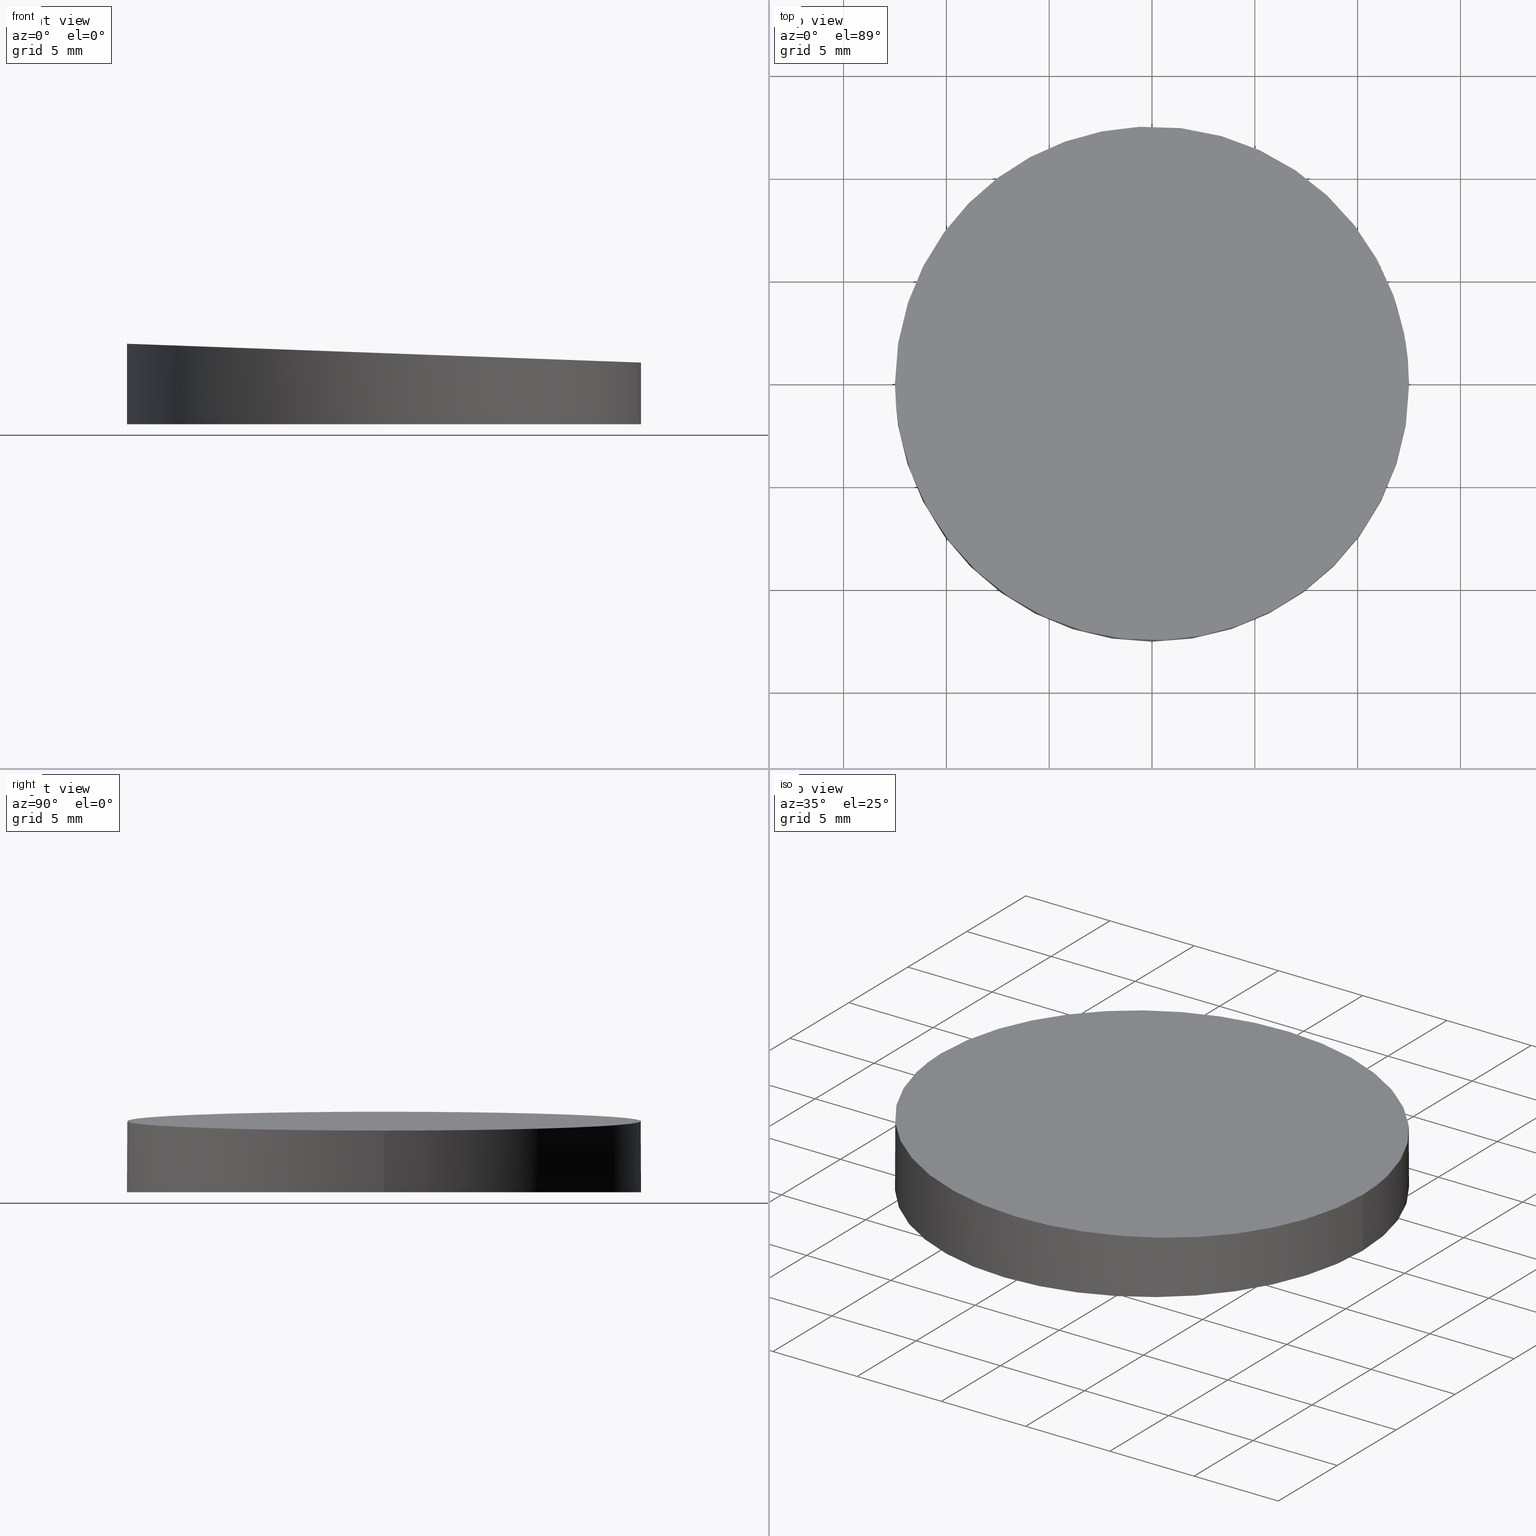
[diagram: canonical four-view strip — front | top / right | iso, engineering-drawing reading convention]
A machine part, canonical four-view strip (front | top / right | iso — engineering-drawing reading convention). The complete STEP part file that produces these views, byte-faithful:
ISO-10303-21;
HEADER;
FILE_DESCRIPTION (( 'STEP AP203' ),
    '1' );
FILE_NAME ('373530.STEP',
    '2019-07-24T09:39:42',
    ( '' ),
    ( '' ),
    'SwSTEP 2.0',
    'SolidWorks 2016',
    '' );
FILE_SCHEMA (( 'CONFIG_CONTROL_DESIGN' ));
ENDSEC;

DATA;
#1 = DIRECTION ( 'NONE',  ( -0.03660882554267880200, 0.0000000000000000000, -0.9993296722765644400 ) ) ;
#2 = CARTESIAN_POINT ( 'NONE',  ( 0.0000000000000000000, 0.0000000000000000000, 0.0000000000000000000 ) ) ;
#3 = PERSON_AND_ORGANIZATION ( #83, #242 ) ;
#4 = DIRECTION ( 'NONE',  ( 0.0000000000000000000, 0.0000000000000000000, 1.000000000000000000 ) ) ;
#5 = AXIS2_PLACEMENT_3D ( 'NONE', #193, #91, #129 ) ;
#6 = APPROVAL_DATE_TIME ( #253, #178 ) ;
#7 = CC_DESIGN_PERSON_AND_ORGANIZATION_ASSIGNMENT ( #214, #119, ( #241 ) ) ;
#8 = DATE_AND_TIME ( #105, #15 ) ;
#9 = ORIENTED_EDGE ( 'NONE', *, *, #163, .F. ) ;
#10 = CARTESIAN_POINT ( 'NONE',  ( -12.49999999999999600, 0.0000000000000000000, 3.915834547854477200 ) ) ;
#11 = CC_DESIGN_PERSON_AND_ORGANIZATION_ASSIGNMENT ( #168, #100, ( #80 ) ) ;
#12 = PRODUCT ( '373530', '373530', '', ( #39 ) ) ;
#13 = APPROVAL_ROLE ( '' ) ;
#14 = APPROVAL_DATE_TIME ( #106, #49 ) ;
#15 = LOCAL_TIME ( 17, 39, 42.00000000000000000, #157 ) ;
#16 = CC_DESIGN_DATE_AND_TIME_ASSIGNMENT ( #165, #120, ( #241 ) ) ;
#17 = DIRECTION ( 'NONE',  ( -0.9993296722765644400, 0.0000000000000000000, 0.03660882554267880200 ) ) ;
#18 = APPROVAL_PERSON_ORGANIZATION ( #169, #148, #81 ) ;
#19 = LOCAL_TIME ( 17, 39, 42.00000000000000000, #151 ) ;
#20 = EDGE_CURVE ( 'NONE', #116, #243, #138, .T. ) ;
#21 = ADVANCED_BREP_SHAPE_REPRESENTATION ( '373530', ( #195, #118 ), #114 ) ;
#22 = COORDINATED_UNIVERSAL_TIME_OFFSET ( 8, 0, .AHEAD. ) ;
#23 = EDGE_CURVE ( 'NONE', #25, #243, #37, .T. ) ;
#24 = DATE_AND_TIME ( #248, #213 ) ;
#25 = VERTEX_POINT ( 'NONE', #109 ) ;
#26 = APPROVAL_STATUS ( 'not_yet_approved' ) ;
#27 = APPROVAL_STATUS ( 'not_yet_approved' ) ;
#28 = PRODUCT_DEFINITION_FORMATION_WITH_SPECIFIED_SOURCE ( '�κ�', '', #12, .NOT_KNOWN. ) ;
#29 = COORDINATED_UNIVERSAL_TIME_OFFSET ( 8, 0, .AHEAD. ) ;
#30 = DATE_TIME_ROLE ( 'creation_date' ) ;
#31 = CARTESIAN_POINT ( 'NONE',  ( -12.49999999999999600, 0.0000000000000000000, 3.915834547854477200 ) ) ;
#32 = AXIS2_PLACEMENT_3D ( 'NONE', #127, #1, #17 ) ;
#33 = COORDINATED_UNIVERSAL_TIME_OFFSET ( 8, 0, .AHEAD. ) ;
#34 = PLANE ( 'NONE',  #32 ) ;
#35 = ORIENTED_EDGE ( 'NONE', *, *, #217, .T. ) ;
#36 = DIRECTION ( 'NONE',  ( 1.000000000000000000, 0.0000000000000000000, 0.0000000000000000000 ) ) ;
#37 = CIRCLE ( 'NONE', #75, 12.49999999999999600 ) ;
#38 = APPROVAL_PERSON_ORGANIZATION ( #135, #178, #144 ) ;
#39 = MECHANICAL_CONTEXT ( 'NONE', #47, 'mechanical' ) ;
#40 = APPROVAL_DATE_TIME ( #221, #130 ) ;
#41 = APPLICATION_PROTOCOL_DEFINITION ( 'international standard', 'config_control_design', 1994, #160 ) ;
#42 = VERTEX_POINT ( 'NONE', #50 ) ;
#43 = ADVANCED_FACE ( 'NONE', ( #143 ), #34, .F. ) ;
#44 = CALENDAR_DATE ( 2019, 24, 7 ) ;
#45 = ORIENTED_EDGE ( 'NONE', *, *, #124, .F. ) ;
#46 = DATE_AND_TIME ( #229, #99 ) ;
#47 = APPLICATION_CONTEXT ( 'configuration controlled 3d designs of mechanical parts and assemblies' ) ;
#48 = CALENDAR_DATE ( 2019, 24, 7 ) ;
#49 = APPROVAL ( #226, 'δָ��' ) ;
#50 = CARTESIAN_POINT ( 'NONE',  ( 12.49999999999999600, 1.530808498934191100E-015, 3.000000000000000000 ) ) ;
#51 = CARTESIAN_POINT ( 'NONE',  ( -12.49999999999999600, 0.0000000000000000000, 10.00000000000000000 ) ) ;
#52 = ORIENTED_EDGE ( 'NONE', *, *, #20, .F. ) ;
#53 = PERSON_AND_ORGANIZATION_ROLE ( 'creator' ) ;
#54 = CC_DESIGN_PERSON_AND_ORGANIZATION_ASSIGNMENT ( #67, #244, ( #28 ) ) ;
#55 = ADVANCED_FACE ( 'NONE', ( #223 ), #150, .F. ) ;
#56 = COORDINATED_UNIVERSAL_TIME_OFFSET ( 8, 0, .AHEAD. ) ;
#57 = PERSON_AND_ORGANIZATION ( #83, #242 ) ;
#58 = PERSON_AND_ORGANIZATION_ROLE ( 'design_owner' ) ;
#59 = CC_DESIGN_PERSON_AND_ORGANIZATION_ASSIGNMENT ( #199, #58, ( #12 ) ) ;
#60 = PERSON_AND_ORGANIZATION_ROLE ( 'design_supplier' ) ;
#61 = APPROVAL_PERSON_ORGANIZATION ( #112, #222, #238 ) ;
#62 = ORIENTED_EDGE ( 'NONE', *, *, #23, .T. ) ;
#63 = ADVANCED_FACE ( 'NONE', ( #197 ), #69, .T. ) ;
#64 = APPROVAL_ROLE ( '' ) ;
#65 = AXIS2_PLACEMENT_3D ( 'NONE', #171, #71, #212 ) ;
#66 = DIRECTION ( 'NONE',  ( -1.000000000000000000, 0.0000000000000000000, 0.0000000000000000000 ) ) ;
#67 = PERSON_AND_ORGANIZATION ( #83, #242 ) ;
#68 = COORDINATED_UNIVERSAL_TIME_OFFSET ( 8, 0, .AHEAD. ) ;
#69 = CYLINDRICAL_SURFACE ( 'NONE', #5, 12.49999999999999600 ) ;
#70 = CARTESIAN_POINT ( 'NONE',  ( 0.0000000000000000000, 0.0000000000000000000, 0.0000000000000000000 ) ) ;
#71 = DIRECTION ( 'NONE',  ( 0.0000000000000000000, 0.0000000000000000000, 1.000000000000000000 ) ) ;
#72 =( LENGTH_UNIT ( ) NAMED_UNIT ( * ) SI_UNIT ( .MILLI., .METRE. ) );
#73 = CC_DESIGN_DATE_AND_TIME_ASSIGNMENT ( #233, #240, ( #96 ) ) ;
#74 = COORDINATED_UNIVERSAL_TIME_OFFSET ( 8, 0, .AHEAD. ) ;
#75 = AXIS2_PLACEMENT_3D ( 'NONE', #2, #4, #36 ) ;
#76 = CALENDAR_DATE ( 2019, 24, 7 ) ;
#77 = DATE_AND_TIME ( #180, #181 ) ;
#78 = EDGE_LOOP ( 'NONE', ( #35, #94, #62, #52 ) ) ;
#79 = CARTESIAN_POINT ( 'NONE',  ( 12.50000000000000000, 24.99999999999998900, 2.999999999999999600 ) ) ;
#80 = PRODUCT_DEFINITION ( 'δ֪', '', #201, #231 ) ;
#81 = APPROVAL_ROLE ( '' ) ;
#82 = DIRECTION ( 'NONE',  ( 1.000000000000000000, 0.0000000000000000000, 0.0000000000000000000 ) ) ;
#83 = PERSON ( 'δָ��', 'δָ��', 'δָ��', ('δָ��'), ('δָ��'), ('δָ��') ) ;
#84 = PERSON_AND_ORGANIZATION_ROLE ( 'design_supplier' ) ;
#85 = PERSON_AND_ORGANIZATION ( #83, #242 ) ;
#86 = CC_DESIGN_SECURITY_CLASSIFICATION ( #153, ( #28 ) ) ;
#87 = VECTOR ( 'NONE', #92, 1000.000000000000000 ) ;
#88 = LINE ( 'NONE', #191, #235 ) ;
#89 = UNCERTAINTY_MEASURE_WITH_UNIT (LENGTH_MEASURE( 1.000000000000000100E-005 ), #72, 'distance_accuracy_value', 'NONE');
#90 =( NAMED_UNIT ( * ) SI_UNIT ( $, .STERADIAN. ) SOLID_ANGLE_UNIT ( ) );
#91 = DIRECTION ( 'NONE',  ( -0.0000000000000000000, -0.0000000000000000000, -1.000000000000000000 ) ) ;
#92 = DIRECTION ( 'NONE',  ( -0.0000000000000000000, -0.0000000000000000000, -1.000000000000000000 ) ) ;
#93 = LOCAL_TIME ( 17, 39, 42.00000000000000000, #74 ) ;
#94 = ORIENTED_EDGE ( 'NONE', *, *, #145, .T. ) ;
#95 = CC_DESIGN_APPROVAL ( #49, ( #241 ) ) ;
#96 = PRODUCT_DEFINITION ( 'δ֪', '', #28, #172 ) ;
#97 = LOCAL_TIME ( 17, 39, 42.00000000000000000, #149 ) ;
#98 = ORIENTED_EDGE ( 'NONE', *, *, #20, .T. ) ;
#99 = LOCAL_TIME ( 17, 39, 42.00000000000000000, #68 ) ;
#100 = PERSON_AND_ORGANIZATION_ROLE ( 'creator' ) ;
#101 = APPLICATION_PROTOCOL_DEFINITION ( 'international standard', 'config_control_design', 1994, #47 ) ;
#102 = LOCAL_TIME ( 17, 39, 42.00000000000000000, #33 ) ;
#103 = CIRCLE ( 'NONE', #230, 12.49999999999999600 ) ;
#104 = APPLICATION_CONTEXT ( 'configuration controlled 3d designs of mechanical parts and assemblies' ) ;
#105 = CALENDAR_DATE ( 2019, 24, 7 ) ;
#106 = DATE_AND_TIME ( #137, #111 ) ;
#107 = CARTESIAN_POINT ( 'NONE',  ( -12.49999999999999500, -24.99999999999998900, 3.915834547854476700 ) ) ;
#108 = CC_DESIGN_APPROVAL ( #222, ( #201 ) ) ;
#109 = CARTESIAN_POINT ( 'NONE',  ( 12.49999999999999600, 1.530808498934191100E-015, 0.0000000000000000000 ) ) ;
#110 = APPROVAL_STATUS ( 'not_yet_approved' ) ;
#111 = LOCAL_TIME ( 17, 39, 42.00000000000000000, #29 ) ;
#112 = PERSON_AND_ORGANIZATION ( #83, #242 ) ;
#113 = EDGE_LOOP ( 'NONE', ( #45, #147 ) ) ;
#114 =( GEOMETRIC_REPRESENTATION_CONTEXT ( 3 ) GLOBAL_UNCERTAINTY_ASSIGNED_CONTEXT ( ( #89 ) ) GLOBAL_UNIT_ASSIGNED_CONTEXT ( ( #72, #232, #90 ) ) REPRESENTATION_CONTEXT ( 'NONE', 'WORKASPACE' ) );
#115 = CC_DESIGN_PERSON_AND_ORGANIZATION_ASSIGNMENT ( #3, #203, ( #225 ) ) ;
#116 = VERTEX_POINT ( 'NONE', #31 ) ;
#117 = SECURITY_CLASSIFICATION_LEVEL ( 'unclassified' ) ;
#118 = AXIS2_PLACEMENT_3D ( 'NONE', #185, #207, #227 ) ;
#119 = PERSON_AND_ORGANIZATION_ROLE ( 'classification_officer' ) ;
#120 = DATE_TIME_ROLE ( 'classification_date' ) ;
#121 = CC_DESIGN_SECURITY_CLASSIFICATION ( #241, ( #201 ) ) ;
#122 = DATE_AND_TIME ( #200, #19 ) ;
#123 = DIRECTION ( 'NONE',  ( 1.000000000000000000, 0.0000000000000000000, 0.0000000000000000000 ) ) ;
#124 = EDGE_CURVE ( 'NONE', #243, #25, #103, .T. ) ;
#125 = CARTESIAN_POINT ( 'NONE',  ( 12.50000000000000000, -24.99999999999998900, 2.999999999999999600 ) ) ;
#126 = CARTESIAN_POINT ( 'NONE',  ( 0.0000000000000000000, 0.0000000000000000000, 10.00000000000000000 ) ) ;
#127 = CARTESIAN_POINT ( 'NONE',  ( 12.49999999999999600, -25.00000000000000000, 3.000000000000000000 ) ) ;
#128 = AXIS2_PLACEMENT_3D ( 'NONE', #251, #184, #82 ) ;
#129 = DIRECTION ( 'NONE',  ( -1.000000000000000000, 0.0000000000000000000, 0.0000000000000000000 ) ) ;
#130 = APPROVAL ( #26, 'δָ��' ) ;
#131 = PERSON_AND_ORGANIZATION ( #83, #242 ) ;
#132 = PRODUCT_DEFINITION_SHAPE ( 'NONE', 'NONE',  #96 ) ;
#133 = ORIENTED_EDGE ( 'NONE', *, *, #217, .F. ) ;
#134 = CC_DESIGN_PERSON_AND_ORGANIZATION_ASSIGNMENT ( #57, #84, ( #201 ) ) ;
#135 = PERSON_AND_ORGANIZATION ( #83, #242 ) ;
#136 = CYLINDRICAL_SURFACE ( 'NONE', #182, 12.49999999999999600 ) ;
#137 = CALENDAR_DATE ( 2019, 24, 7 ) ;
#138 = LINE ( 'NONE', #51, #87 ) ;
#139 = CARTESIAN_POINT ( 'NONE',  ( -12.50000000000000500, 24.99999999999998900, 3.915834547854476700 ) ) ;
#140 = CC_DESIGN_APPROVAL ( #155, ( #28 ) ) ;
#141 = APPLICATION_PROTOCOL_DEFINITION ( 'international standard', 'config_control_design', 1994, #104 ) ;
#142 = PERSON_AND_ORGANIZATION_ROLE ( 'classification_officer' ) ;
#143 = FACE_OUTER_BOUND ( 'NONE', #158, .T. ) ;
#144 = APPROVAL_ROLE ( '' ) ;
#145 = EDGE_CURVE ( 'NONE', #42, #25, #88, .T. ) ;
#146 =( BOUNDED_CURVE ( )  B_SPLINE_CURVE ( 3, ( #188, #125, #107, #211 ),
 .UNSPECIFIED., .F., .F. ) 
 B_SPLINE_CURVE_WITH_KNOTS ( ( 4, 4 ),
 ( 0.0000000000000000000, 3.141592653589793100 ),
 .UNSPECIFIED. ) 
 CURVE ( )  GEOMETRIC_REPRESENTATION_ITEM ( )  RATIONAL_B_SPLINE_CURVE ( ( 1.000000000000000000, 0.3333333333333333700, 0.3333333333333333700, 1.000000000000000000 ) ) 
 REPRESENTATION_ITEM ( '' )  );
#147 = ORIENTED_EDGE ( 'NONE', *, *, #23, .F. ) ;
#148 = APPROVAL ( #27, 'δָ��' ) ;
#149 = COORDINATED_UNIVERSAL_TIME_OFFSET ( 8, 0, .AHEAD. ) ;
#150 = PLANE ( 'NONE',  #65 ) ;
#151 = COORDINATED_UNIVERSAL_TIME_OFFSET ( 8, 0, .AHEAD. ) ;
#152 = ORIENTED_EDGE ( 'NONE', *, *, #145, .F. ) ;
#153 = SECURITY_CLASSIFICATION ( '', '', #183 ) ;
#154 = CLOSED_SHELL ( 'NONE', ( #63, #179, #55, #43 ) ) ;
#155 = APPROVAL ( #204, 'δָ��' ) ;
#156 = CARTESIAN_POINT ( 'NONE',  ( 12.49999999999999600, 1.530808498934191100E-015, 3.000000000000000000 ) ) ;
#157 = COORDINATED_UNIVERSAL_TIME_OFFSET ( 8, 0, .AHEAD. ) ;
#158 = EDGE_LOOP ( 'NONE', ( #133, #9 ) ) ;
#159 = LOCAL_TIME ( 17, 39, 42.00000000000000000, #22 ) ;
#160 = APPLICATION_CONTEXT ( 'configuration controlled 3d designs of mechanical parts and assemblies' ) ;
#161 = APPROVAL_PERSON_ORGANIZATION ( #131, #130, #64 ) ;
#162 = MECHANICAL_CONTEXT ( 'NONE', #104, 'mechanical' ) ;
#163 = EDGE_CURVE ( 'NONE', #42, #116, #146, .T. ) ;
#164 = APPLICATION_PROTOCOL_DEFINITION ( 'international standard', 'config_control_design', 1994, #202 ) ;
#165 = DATE_AND_TIME ( #76, #159 ) ;
#166 = DIRECTION ( 'NONE',  ( -0.0000000000000000000, -0.0000000000000000000, -1.000000000000000000 ) ) ;
#167 = PRODUCT_RELATED_PRODUCT_CATEGORY ( 'detail', '', ( #12 ) ) ;
#168 = PERSON_AND_ORGANIZATION ( #83, #242 ) ;
#169 = PERSON_AND_ORGANIZATION ( #83, #242 ) ;
#170 = DIRECTION ( 'NONE',  ( -0.0000000000000000000, -0.0000000000000000000, -1.000000000000000000 ) ) ;
#171 = CARTESIAN_POINT ( 'NONE',  ( 0.0000000000000000000, 0.0000000000000000000, 0.0000000000000000000 ) ) ;
#172 = DESIGN_CONTEXT ( 'detailed design', #160, 'design' ) ;
#173 = SHAPE_DEFINITION_REPRESENTATION ( #189, #21 ) ;
#174 = CC_DESIGN_APPROVAL ( #148, ( #153 ) ) ;
#175 = PERSON_AND_ORGANIZATION ( #83, #242 ) ;
#176 = APPROVAL_PERSON_ORGANIZATION ( #85, #155, #208 ) ;
#177 = EDGE_LOOP ( 'NONE', ( #152, #192, #98, #250 ) ) ;
#178 = APPROVAL ( #110, 'δָ��' ) ;
#179 = ADVANCED_FACE ( 'NONE', ( #234 ), #136, .T. ) ;
#180 = CALENDAR_DATE ( 2019, 24, 7 ) ;
#181 = LOCAL_TIME ( 17, 39, 42.00000000000000000, #237 ) ;
#182 = AXIS2_PLACEMENT_3D ( 'NONE', #126, #170, #66 ) ;
#183 = SECURITY_CLASSIFICATION_LEVEL ( 'unclassified' ) ;
#184 = DIRECTION ( 'NONE',  ( 0.0000000000000000000, 0.0000000000000000000, 1.000000000000000000 ) ) ;
#185 = CARTESIAN_POINT ( 'NONE',  ( 0.0000000000000000000, 0.0000000000000000000, 0.0000000000000000000 ) ) ;
#186 = CC_DESIGN_DATE_AND_TIME_ASSIGNMENT ( #24, #30, ( #80 ) ) ;
#187 = PERSON_AND_ORGANIZATION ( #83, #242 ) ;
#188 = CARTESIAN_POINT ( 'NONE',  ( 12.49999999999999600, 1.530808498934191100E-015, 3.000000000000000000 ) ) ;
#189 = PRODUCT_DEFINITION_SHAPE ( 'NONE', 'NONE',  #80 ) ;
#190 = CC_DESIGN_DATE_AND_TIME_ASSIGNMENT ( #77, #239, ( #153 ) ) ;
#191 = CARTESIAN_POINT ( 'NONE',  ( 12.49999999999999600, 1.530808498934191100E-015, 10.00000000000000000 ) ) ;
#192 = ORIENTED_EDGE ( 'NONE', *, *, #163, .T. ) ;
#193 = CARTESIAN_POINT ( 'NONE',  ( 0.0000000000000000000, 0.0000000000000000000, 10.00000000000000000 ) ) ;
#194 = PERSON_AND_ORGANIZATION ( #83, #242 ) ;
#195 = MANIFOLD_SOLID_BREP ( '�г�-����1', #154 ) ;
#196 = CARTESIAN_POINT ( 'NONE',  ( -12.49999999999999600, 0.0000000000000000000, 0.0000000000000000000 ) ) ;
#197 = FACE_OUTER_BOUND ( 'NONE', #78, .T. ) ;
#198 = CC_DESIGN_APPROVAL ( #178, ( #96 ) ) ;
#199 = PERSON_AND_ORGANIZATION ( #83, #242 ) ;
#200 = CALENDAR_DATE ( 2019, 24, 7 ) ;
#201 = PRODUCT_DEFINITION_FORMATION_WITH_SPECIFIED_SOURCE ( '�κ�', '', #225, .NOT_KNOWN. ) ;
#202 = APPLICATION_CONTEXT ( 'configuration controlled 3d designs of mechanical parts and assemblies' ) ;
#203 = PERSON_AND_ORGANIZATION_ROLE ( 'design_owner' ) ;
#204 = APPROVAL_STATUS ( 'not_yet_approved' ) ;
#205 = PERSON_AND_ORGANIZATION ( #83, #242 ) ;
#206 = CC_DESIGN_PERSON_AND_ORGANIZATION_ASSIGNMENT ( #187, #142, ( #153 ) ) ;
#207 = DIRECTION ( 'NONE',  ( 0.0000000000000000000, 0.0000000000000000000, 1.000000000000000000 ) ) ;
#208 = APPROVAL_ROLE ( '' ) ;
#209 = APPROVAL_DATE_TIME ( #8, #222 ) ;
#210 = CC_DESIGN_APPROVAL ( #130, ( #80 ) ) ;
#211 = CARTESIAN_POINT ( 'NONE',  ( -12.49999999999999600, 0.0000000000000000000, 3.915834547854477200 ) ) ;
#212 = DIRECTION ( 'NONE',  ( 1.000000000000000000, 0.0000000000000000000, -0.0000000000000000000 ) ) ;
#213 = LOCAL_TIME ( 17, 39, 42.00000000000000000, #56 ) ;
#214 = PERSON_AND_ORGANIZATION ( #83, #242 ) ;
#215 = CC_DESIGN_PERSON_AND_ORGANIZATION_ASSIGNMENT ( #245, #246, ( #201 ) ) ;
#216 = APPROVAL_DATE_TIME ( #122, #148 ) ;
#217 = EDGE_CURVE ( 'NONE', #116, #42, #218, .T. ) ;
#218 =( BOUNDED_CURVE ( )  B_SPLINE_CURVE ( 3, ( #10, #139, #79, #156 ),
 .UNSPECIFIED., .F., .F. ) 
 B_SPLINE_CURVE_WITH_KNOTS ( ( 4, 4 ),
 ( 3.141592653589793100, 6.283185307179586200 ),
 .UNSPECIFIED. ) 
 CURVE ( )  GEOMETRIC_REPRESENTATION_ITEM ( )  RATIONAL_B_SPLINE_CURVE ( ( 1.000000000000000000, 0.3333333333333333700, 0.3333333333333333700, 1.000000000000000000 ) ) 
 REPRESENTATION_ITEM ( '' )  );
#219 = APPROVAL_PERSON_ORGANIZATION ( #194, #49, #13 ) ;
#220 = CALENDAR_DATE ( 2019, 24, 7 ) ;
#221 = DATE_AND_TIME ( #220, #93 ) ;
#222 = APPROVAL ( #224, 'δָ��' ) ;
#223 = FACE_OUTER_BOUND ( 'NONE', #113, .T. ) ;
#224 = APPROVAL_STATUS ( 'not_yet_approved' ) ;
#225 = PRODUCT ( '373530', '373530', '', ( #162 ) ) ;
#226 = APPROVAL_STATUS ( 'not_yet_approved' ) ;
#227 = DIRECTION ( 'NONE',  ( 1.000000000000000000, 0.0000000000000000000, 0.0000000000000000000 ) ) ;
#228 = CC_DESIGN_PERSON_AND_ORGANIZATION_ASSIGNMENT ( #175, #60, ( #28 ) ) ;
#229 = CALENDAR_DATE ( 2019, 24, 7 ) ;
#230 = AXIS2_PLACEMENT_3D ( 'NONE', #70, #249, #123 ) ;
#231 = DESIGN_CONTEXT ( 'detailed design', #202, 'design' ) ;
#232 =( NAMED_UNIT ( * ) PLANE_ANGLE_UNIT ( ) SI_UNIT ( $, .RADIAN. ) );
#233 = DATE_AND_TIME ( #44, #97 ) ;
#234 = FACE_OUTER_BOUND ( 'NONE', #177, .T. ) ;
#235 = VECTOR ( 'NONE', #166, 1000.000000000000000 ) ;
#236 = APPROVAL_DATE_TIME ( #46, #155 ) ;
#237 = COORDINATED_UNIVERSAL_TIME_OFFSET ( 8, 0, .AHEAD. ) ;
#238 = APPROVAL_ROLE ( '' ) ;
#239 = DATE_TIME_ROLE ( 'classification_date' ) ;
#240 = DATE_TIME_ROLE ( 'creation_date' ) ;
#241 = SECURITY_CLASSIFICATION ( '', '', #117 ) ;
#242 = ORGANIZATION ( 'δָ��', 'δָ��', '' ) ;
#243 = VERTEX_POINT ( 'NONE', #196 ) ;
#244 = PERSON_AND_ORGANIZATION_ROLE ( 'creator' ) ;
#245 = PERSON_AND_ORGANIZATION ( #83, #242 ) ;
#246 = PERSON_AND_ORGANIZATION_ROLE ( 'creator' ) ;
#247 = PRODUCT_RELATED_PRODUCT_CATEGORY ( 'detail', '', ( #225 ) ) ;
#248 = CALENDAR_DATE ( 2019, 24, 7 ) ;
#249 = DIRECTION ( 'NONE',  ( 0.0000000000000000000, 0.0000000000000000000, 1.000000000000000000 ) ) ;
#250 = ORIENTED_EDGE ( 'NONE', *, *, #124, .T. ) ;
#251 = CARTESIAN_POINT ( 'NONE',  ( 0.0000000000000000000, 0.0000000000000000000, 0.0000000000000000000 ) ) ;
#252 = CC_DESIGN_PERSON_AND_ORGANIZATION_ASSIGNMENT ( #205, #53, ( #96 ) ) ;
#253 = DATE_AND_TIME ( #48, #102 ) ;
ENDSEC;
END-ISO-10303-21;
